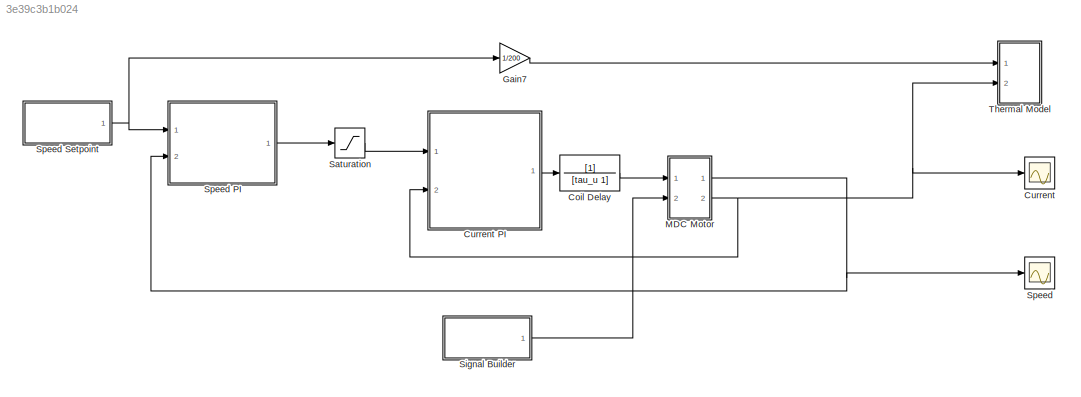
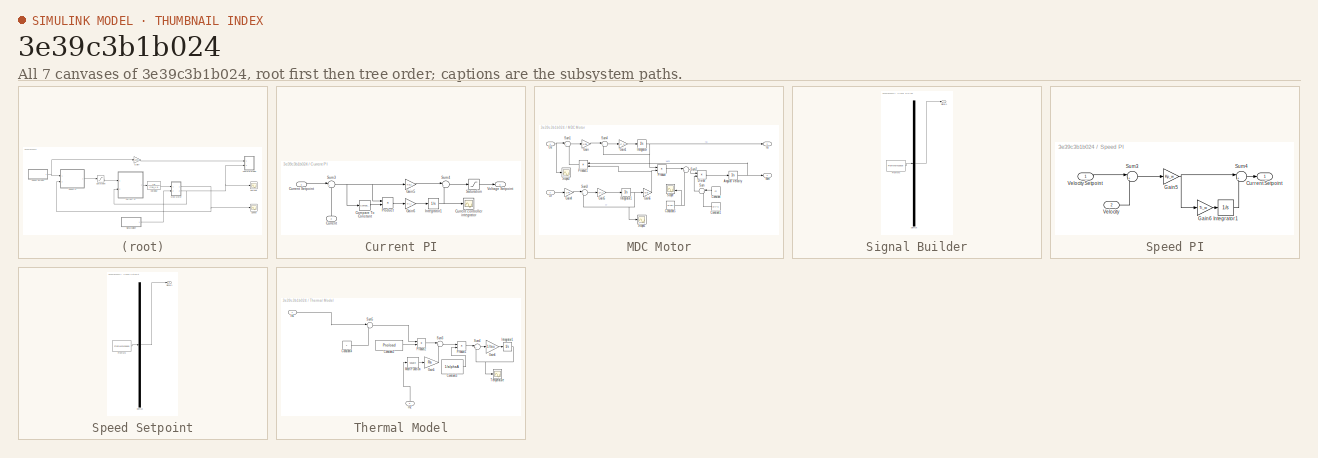
[diagram: thumbnail index - all 7 canvases of the model, root first then tree order]
MODEL slx_3e39c3b1b024
KIND model
CONFIG AbsTol = auto
CONFIG EnableMultiTasking = off
CONFIG FixedStep = auto
CONFIG MaxStep = auto
CONFIG MinStep = auto
CONFIG RelTol = 1e-3
CONFIG SampleTimeConstraint = Unconstrained
CONFIG Solver = ode23s
CONFIG SolverName = ode23s
CONFIG StartTime = 0.0
CONFIG StopTime = 1000
BLOCK [TransferFcn] Coil Delay
  Denominator = [tau_u 1]
BLOCK [Scope] Current 
  NumInputPorts = 1
  Ports = [1]
  ScopeSpecificationString = Simulink.scopes.TimeScopeBlockCfg('CurrentConfiguration', extmgr.ConfigurationSet(extmgr.Configuration('Core','General UI',true),extmgr.Configuration('Core','Source UI',true),extmgr.Configuration('Sources','WiredSimulink',true,'DataLoggingVariableName','ScopeData2'),extmgr.Configuration('Visuals','Time Domain',true,'SerializedDisplays',{struct('MinYLimReal','74.34345','MaxYLimReal','104.38469','YL...<+1454ch>
BLOCK [SubSystem] Current PI
  Ports = [2, 1]
  RequestExecContextInheritance = off
  Variant = off
BLOCK [Reference] Current PI/Compare To Constant  REF=simulink/Logic and Bit
Operations/Compare
To Constant
  Ports = [1, 1]
  SourceBlock = simulink/Logic and Bit\nOperations/Compare\nTo Constant
  SourceType = Compare To Constant
BLOCK [Inport] Current PI/Current
  IconDisplay = Port number
  Port = 2
BLOCK [Inport] Current PI/Current Setpoint
  IconDisplay = Port number
BLOCK [Scope] Current PI/Current controller integrator
  NumInputPorts = 1
  Ports = [1]
  ScopeSpecificationString = Simulink.scopes.TimeScopeBlockCfg('CurrentConfiguration', extmgr.ConfigurationSet(extmgr.Configuration('Core','General UI',true),extmgr.Configuration('Core','Source UI',true),extmgr.Configuration('Sources','WiredSimulink',true,'DataLoggingVariableName','ScopeData2'),extmgr.Configuration('Visuals','Time Domain',true,'SerializedDisplays',{struct('MinYLimReal','-23.98405','MaxYLimReal','215.85642','Y...<+1430ch>
BLOCK [Gain] Current PI/Gain5
  Gain = Kp_i
  OutDataTypeStr = Inherit: Inherit via internal rule
  ParamDataTypeStr = Inherit: Inherit via internal rule
  SaturateOnIntegerOverflow = off
BLOCK [Gain] Current PI/Gain6
  Gain = Ti_i
  OutDataTypeStr = Inherit: Inherit via internal rule
  ParamDataTypeStr = Inherit: Inherit via internal rule
  SaturateOnIntegerOverflow = off
BLOCK [Integrator] Current PI/Integrator1
  Ports = [1, 1]
BLOCK [Product] Current PI/Product
  InputSameDT = off
  OutDataTypeStr = Inherit: Inherit via internal rule
  Ports = [2, 1]
  RndMeth = Floor
  SaturateOnIntegerOverflow = off
BLOCK [Saturate] Current PI/Saturation
  InputPortMap = u0
  LowerLimit = -220
  Ports = [1, 1]
  UpperLimit = 220
BLOCK [Sum] Current PI/Sum3
  IconShape = round
  InputSameDT = off
  Inputs = |+-
  OutDataTypeStr = Inherit: Inherit via internal rule
  Ports = [2, 1]
  SaturateOnIntegerOverflow = off
BLOCK [Sum] Current PI/Sum4
  IconShape = round
  InputSameDT = off
  Inputs = |++
  OutDataTypeStr = Inherit: Inherit via internal rule
  Ports = [2, 1]
  SaturateOnIntegerOverflow = off
BLOCK [Outport] Current PI/Voltage Setpoint
  IconDisplay = Port number
BLOCK [Gain] Gain7
  Gain = 1/200
  OutDataTypeStr = Inherit: Inherit via internal rule
  ParamDataTypeStr = Inherit: Inherit via internal rule
  SaturateOnIntegerOverflow = off
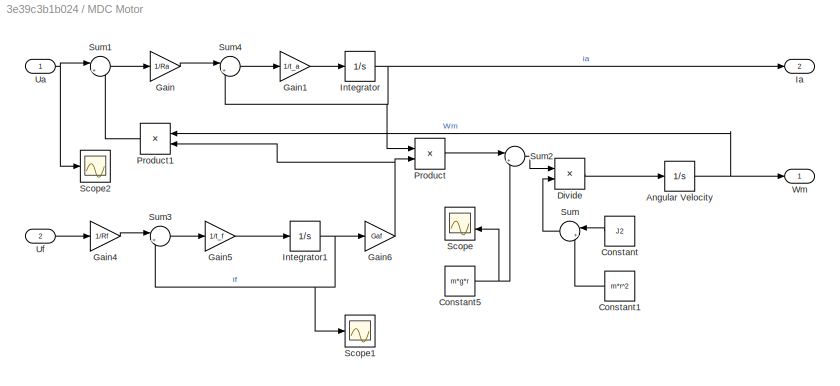
BLOCK [SubSystem] MDC Motor
  Ports = [2, 2]
  RequestExecContextInheritance = off
  Variant = off
BLOCK [Integrator] MDC Motor/Angular Velocity
  Ports = [1, 1]
BLOCK [Constant] MDC Motor/Constant
  Value = J2
BLOCK [Constant] MDC Motor/Constant1
  Value = m*r^2
BLOCK [Constant] MDC Motor/Constant5
  Value = m*g*r
BLOCK [Product] MDC Motor/Divide
  InputSameDT = off
  Inputs = */
  OutDataTypeStr = Inherit: Inherit via internal rule
  Ports = [2, 1]
  RndMeth = Floor
  SaturateOnIntegerOverflow = off
BLOCK [Gain] MDC Motor/Gain
  Gain = 1/Ra
  OutDataTypeStr = Inherit: Inherit via internal rule
  ParamDataTypeStr = Inherit: Inherit via internal rule
  SaturateOnIntegerOverflow = off
BLOCK [Gain] MDC Motor/Gain1
  Gain = 1/t_a
  OutDataTypeStr = Inherit: Inherit via internal rule
  ParamDataTypeStr = Inherit: Inherit via internal rule
  SaturateOnIntegerOverflow = off
BLOCK [Gain] MDC Motor/Gain4
  Gain = 1/Rf
  OutDataTypeStr = Inherit: Inherit via internal rule
  ParamDataTypeStr = Inherit: Inherit via internal rule
  SaturateOnIntegerOverflow = off
BLOCK [Gain] MDC Motor/Gain5
  Gain = 1/t_f
  OutDataTypeStr = Inherit: Inherit via internal rule
  ParamDataTypeStr = Inherit: Inherit via internal rule
  SaturateOnIntegerOverflow = off
BLOCK [Gain] MDC Motor/Gain6
  Gain = Gaf
  OutDataTypeStr = Inherit: Inherit via internal rule
  ParamDataTypeStr = Inherit: Inherit via internal rule
  SaturateOnIntegerOverflow = off
BLOCK [Outport] MDC Motor/Ia
  IconDisplay = Port number
  Port = 2
BLOCK [Integrator] MDC Motor/Integrator
  Ports = [1, 1]
BLOCK [Integrator] MDC Motor/Integrator1
  InitialCondition = i_f_0
  Ports = [1, 1]
BLOCK [Product] MDC Motor/Product
  InputSameDT = off
  OutDataTypeStr = Inherit: Inherit via internal rule
  Ports = [2, 1]
  RndMeth = Floor
  SaturateOnIntegerOverflow = off
BLOCK [Product] MDC Motor/Product1
  InputSameDT = off
  OutDataTypeStr = Inherit: Inherit via internal rule
  Ports = [2, 1]
  RndMeth = Floor
  SaturateOnIntegerOverflow = off
BLOCK [Scope] MDC Motor/Scope
  NumInputPorts = 2
  Ports = [2]
  ScopeSpecificationString = Simulink.scopes.TimeScopeBlockCfg('CurrentConfiguration', extmgr.ConfigurationSet(extmgr.Configuration('Core','General UI',true),extmgr.Configuration('Core','Source UI',true),extmgr.Configuration('Sources','WiredSimulink',true,'DataLoggingVariableName','ScopeData1'),extmgr.Configuration('Visuals','Time Domain',true,'SerializedDisplays',{struct('MinYLimReal','-17.49874','MaxYLimReal','157.4887','YL...<+1381ch>
BLOCK [Scope] MDC Motor/Scope1
  NumInputPorts = 1
  Ports = [1]
  ScopeSpecificationString = Simulink.scopes.TimeScopeBlockCfg('CurrentConfiguration', extmgr.ConfigurationSet(extmgr.Configuration('Core','General UI',true),extmgr.Configuration('Core','Source UI',true),extmgr.Configuration('Sources','WiredSimulink',true,'DataLoggingVariableName','ScopeData3'),extmgr.Configuration('Visuals','Time Domain',true,'SerializedDisplays',{struct('MinYLimReal','0.99415','MaxYLimReal','1.10305','YLabe...<+1703ch>
BLOCK [Scope] MDC Motor/Scope2
  NumInputPorts = 1
  Ports = [1]
  ScopeSpecificationString = Simulink.scopes.TimeScopeBlockCfg('CurrentConfiguration', extmgr.ConfigurationSet(extmgr.Configuration('Core','General UI',true),extmgr.Configuration('Core','Source UI',true),extmgr.Configuration('Sources','WiredSimulink',true,'DataLoggingVariableName','ScopeData4'),extmgr.Configuration('Visuals','Time Domain',true,'SerializedDisplays',{struct('MinYLimReal','-249.72638','MaxYLimReal','47.53659','Y...<+1373ch>
BLOCK [Sum] MDC Motor/Sum
  IconShape = round
  InputSameDT = off
  Inputs = |++
  OutDataTypeStr = Inherit: Inherit via internal rule
  Ports = [2, 1]
  SaturateOnIntegerOverflow = off
BLOCK [Sum] MDC Motor/Sum1
  IconShape = round
  InputSameDT = off
  Inputs = |+-
  OutDataTypeStr = Inherit: Inherit via internal rule
  Ports = [2, 1]
  SaturateOnIntegerOverflow = off
BLOCK [Sum] MDC Motor/Sum2
  IconShape = round
  InputSameDT = off
  Inputs = |+-
  OutDataTypeStr = Inherit: Inherit via internal rule
  Ports = [2, 1]
  SaturateOnIntegerOverflow = off
BLOCK [Sum] MDC Motor/Sum3
  IconShape = round
  InputSameDT = off
  Inputs = |+-
  OutDataTypeStr = Inherit: Inherit via internal rule
  Ports = [2, 1]
  SaturateOnIntegerOverflow = off
BLOCK [Sum] MDC Motor/Sum4
  IconShape = round
  InputSameDT = off
  Inputs = |+-
  OutDataTypeStr = Inherit: Inherit via internal rule
  Ports = [2, 1]
  SaturateOnIntegerOverflow = off
BLOCK [Inport] MDC Motor/Ua
  IconDisplay = Port number
BLOCK [Inport] MDC Motor/Uf
  IconDisplay = Port number
  Port = 2
BLOCK [Outport] MDC Motor/Wm
  IconDisplay = Port number
BLOCK [Saturate] Saturation
  InputPortMap = u0
  LowerLimit = -100
  Ports = [1, 1]
  UpperLimit = 100
BLOCK [SubSystem] Signal Builder
  ClipboardFcn = sigbuilder_block('clipboard');
  CloseFcn = sigbuilder_block('close');
  ContinueFcn = sigbuilder_block('continue');
  CopyFcn = sigbuilder_block('copy');
  DeleteFcn = sigbuilder_block('delete');
  LoadFcn = sigbuilder_block('load');
  MaskHideContents = on
  ModelCloseFcn = sigbuilder_block('modelClose');
  NameChangeFcn = sigbuilder_block('namechange');
  OpenFcn = sigbuilder_block('open',[437.6 199.2 550.4 400 ]);
  PauseFcn = sigbuilder_block('pause');
  Ports = [0, 1]
  PreSaveFcn = sigbuilder_block('preSave');
  RequestExecContextInheritance = off
  StartFcn = sigbuilder_block('start');
  StopFcn = sigbuilder_block('stop');
  Tag = STV Subsys
  Variant = off
BLOCK [Demux] Signal Builder/Demux
  Outputs = 1
  Ports = [1, 1]
  Tag = STV Demux
BLOCK [FromWorkspace] Signal Builder/FromWs
  SampleTime = 0
  Tag = STV FromWs
  VariableName = tuvar
  ZeroCross = on
BLOCK [Outport] Signal Builder/Signal 1
  IconDisplay = Port number
  Tag = STV Outport
BLOCK [Scope] Speed
  NumInputPorts = 1
  Ports = [1]
  ScopeSpecificationString = Simulink.scopes.TimeScopeBlockCfg('CurrentConfiguration', extmgr.ConfigurationSet(extmgr.Configuration('Core','General UI',true),extmgr.Configuration('Core','Source UI',true),extmgr.Configuration('Sources','WiredSimulink',true,'DataLoggingVariableName','ScopeData1'),extmgr.Configuration('Visuals','Time Domain',true,'SerializedDisplays',{struct('MinYLimReal','-7.88329','MaxYLimReal','2.99022','YLab...<+1418ch>
BLOCK [SubSystem] Speed PI
  Ports = [2, 1]
  RequestExecContextInheritance = off
  Variant = off
BLOCK [Outport] Speed PI/Current Setpoint
  IconDisplay = Port number
BLOCK [Gain] Speed PI/Gain5
  Gain = Kp_w
  OutDataTypeStr = Inherit: Inherit via internal rule
  ParamDataTypeStr = Inherit: Inherit via internal rule
  SaturateOnIntegerOverflow = off
BLOCK [Gain] Speed PI/Gain6
  Gain = Ti_w
  OutDataTypeStr = Inherit: Inherit via internal rule
  ParamDataTypeStr = Inherit: Inherit via internal rule
  SaturateOnIntegerOverflow = off
BLOCK [Integrator] Speed PI/Integrator1
  Ports = [1, 1]
BLOCK [Sum] Speed PI/Sum3
  IconShape = round
  InputSameDT = off
  Inputs = |+-
  OutDataTypeStr = Inherit: Inherit via internal rule
  Ports = [2, 1]
  SaturateOnIntegerOverflow = off
BLOCK [Sum] Speed PI/Sum4
  IconShape = round
  InputSameDT = off
  Inputs = |++
  OutDataTypeStr = Inherit: Inherit via internal rule
  Ports = [2, 1]
  SaturateOnIntegerOverflow = off
BLOCK [Inport] Speed PI/Velocity
  IconDisplay = Port number
  Port = 2
BLOCK [Inport] Speed PI/Velocity Setpoint
  IconDisplay = Port number
BLOCK [SubSystem] Speed Setpoint
  ClipboardFcn = sigbuilder_block('clipboard');
  CloseFcn = sigbuilder_block('close');
  ContinueFcn = sigbuilder_block('continue');
  CopyFcn = sigbuilder_block('copy');
  DeleteFcn = sigbuilder_block('delete');
  LoadFcn = sigbuilder_block('load');
  MaskHideContents = on
  ModelCloseFcn = sigbuilder_block('modelClose');
  NameChangeFcn = sigbuilder_block('namechange');
  OpenFcn = sigbuilder_block('open',[6 30 1428 681.75 ]);
  PauseFcn = sigbuilder_block('pause');
  Ports = [0, 1]
  PreSaveFcn = sigbuilder_block('preSave');
  RequestExecContextInheritance = off
  StartFcn = sigbuilder_block('start');
  StopFcn = sigbuilder_block('stop');
  Tag = STV Subsys
  Variant = off
BLOCK [Demux] Speed Setpoint/Demux
  Outputs = 1
  Ports = [1, 1]
  Tag = STV Demux
BLOCK [FromWorkspace] Speed Setpoint/FromWs
  SampleTime = 0
  Tag = STV FromWs
  VariableName = tuvar
  ZeroCross = on
BLOCK [Outport] Speed Setpoint/Signal 1
  IconDisplay = Port number
  Tag = STV Outport
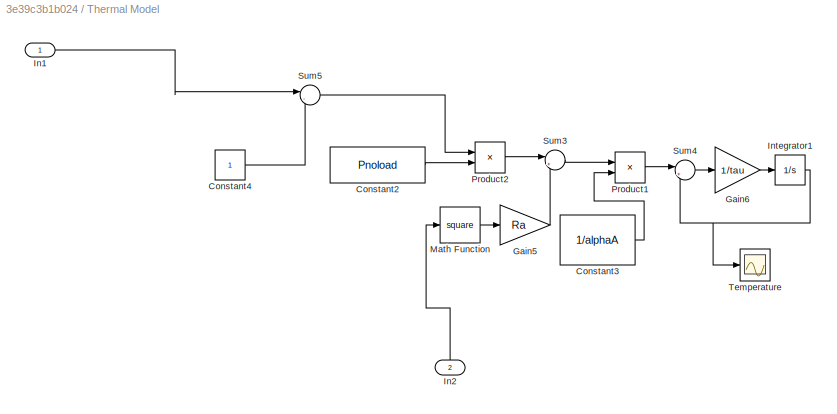
BLOCK [SubSystem] Thermal Model
  Ports = [2]
  RequestExecContextInheritance = off
  Variant = off
BLOCK [Constant] Thermal Model/Constant2
  Value = Pnoload
BLOCK [Constant] Thermal Model/Constant3
  Value = 1/alphaA
BLOCK [Constant] Thermal Model/Constant4
BLOCK [Gain] Thermal Model/Gain5
  Gain = Ra
  OutDataTypeStr = Inherit: Inherit via internal rule
  ParamDataTypeStr = Inherit: Inherit via internal rule
  SaturateOnIntegerOverflow = off
BLOCK [Gain] Thermal Model/Gain6
  Gain = 1/tau
  OutDataTypeStr = Inherit: Inherit via internal rule
  ParamDataTypeStr = Inherit: Inherit via internal rule
  SaturateOnIntegerOverflow = off
BLOCK [Inport] Thermal Model/In1
  IconDisplay = Port number
BLOCK [Inport] Thermal Model/In2
  IconDisplay = Port number
  Port = 2
BLOCK [Integrator] Thermal Model/Integrator1
  Ports = [1, 1]
BLOCK [Math] Thermal Model/Math Function
  Operator = square
  Ports = [1, 1]
BLOCK [Product] Thermal Model/Product1
  InputSameDT = off
  OutDataTypeStr = Inherit: Inherit via internal rule
  Ports = [2, 1]
  RndMeth = Floor
  SaturateOnIntegerOverflow = off
BLOCK [Product] Thermal Model/Product2
  InputSameDT = off
  OutDataTypeStr = Inherit: Inherit via internal rule
  Ports = [2, 1]
  RndMeth = Floor
  SaturateOnIntegerOverflow = off
BLOCK [Sum] Thermal Model/Sum3
  IconShape = round
  InputSameDT = off
  Inputs = |++
  OutDataTypeStr = Inherit: Inherit via internal rule
  Ports = [2, 1]
  SaturateOnIntegerOverflow = off
BLOCK [Sum] Thermal Model/Sum4
  IconShape = round
  InputSameDT = off
  Inputs = |+-
  OutDataTypeStr = Inherit: Inherit via internal rule
  Ports = [2, 1]
  SaturateOnIntegerOverflow = off
BLOCK [Sum] Thermal Model/Sum5
  IconShape = round
  InputSameDT = off
  Inputs = |-+
  OutDataTypeStr = Inherit: Inherit via internal rule
  Ports = [2, 1]
  SaturateOnIntegerOverflow = off
BLOCK [Scope] Thermal Model/Temperature
  NumInputPorts = 1
  Ports = [1]
  ScopeSpecificationString = Simulink.scopes.TimeScopeBlockCfg('CurrentConfiguration', extmgr.ConfigurationSet(extmgr.Configuration('Core','General UI',true),extmgr.Configuration('Core','Source UI',true),extmgr.Configuration('Sources','WiredSimulink',true,'DataLoggingVariableName','ScopeData1'),extmgr.Configuration('Visuals','Time Domain',true,'SerializedDisplays',{struct('MinYLimReal','-1.87933','MaxYLimReal','16.91396','YLa...<+1679ch>
LINE Coil Delay:1 -> MDC Motor:1
LINE Current PI/Compare To Constant:1 -> Current PI/Product:2
LINE Current PI/Current Setpoint:1 -> Current PI/Sum3:1
LINE Current PI/Current:1 -> Current PI/Sum3:2
LINE Current PI/Gain5:1 -> Current PI/Sum4:1
LINE Current PI/Gain6:1 -> Current PI/Integrator1:1
NET Current PI/Integrator1:1 -> Current PI/Current controller integrator:1, Current PI/Sum4:2
LINE Current PI/Product:1 -> Current PI/Gain6:1
LINE Current PI/Saturation:1 -> Current PI/Voltage Setpoint:1
NET Current PI/Sum3:1 -> Current PI/Compare To Constant:1, Current PI/Gain5:1, Current PI/Product:1
LINE Current PI/Sum4:1 -> Current PI/Saturation:1
LINE Current PI:1 -> Coil Delay:1
LINE Gain7:1 -> Thermal Model:1
NET MDC Motor/Angular Velocity:1 -> MDC Motor/Product1:1, MDC Motor/Wm:1
LINE MDC Motor/Constant1:1 -> MDC Motor/Sum:2
NET MDC Motor/Constant5:1 -> MDC Motor/Scope:2, MDC Motor/Sum2:2
LINE MDC Motor/Constant:1 -> MDC Motor/Sum:1
LINE MDC Motor/Divide:1 -> MDC Motor/Angular Velocity:1
LINE MDC Motor/Gain1:1 -> MDC Motor/Integrator:1
LINE MDC Motor/Gain4:1 -> MDC Motor/Sum3:1
LINE MDC Motor/Gain5:1 -> MDC Motor/Integrator1:1
NET MDC Motor/Gain6:1 -> MDC Motor/Product1:2, MDC Motor/Product:2
LINE MDC Motor/Gain:1 -> MDC Motor/Sum4:1
NET MDC Motor/Integrator1:1 -> MDC Motor/Gain6:1, MDC Motor/Scope1:1, MDC Motor/Sum3:2
NET MDC Motor/Integrator:1 -> MDC Motor/Ia:1, MDC Motor/Product:1, MDC Motor/Sum4:2
LINE MDC Motor/Product1:1 -> MDC Motor/Sum1:2
LINE MDC Motor/Product:1 -> MDC Motor/Sum2:1
LINE MDC Motor/Sum1:1 -> MDC Motor/Gain:1
LINE MDC Motor/Sum2:1 -> MDC Motor/Divide:1
LINE MDC Motor/Sum3:1 -> MDC Motor/Gain5:1
LINE MDC Motor/Sum4:1 -> MDC Motor/Gain1:1
LINE MDC Motor/Sum:1 -> MDC Motor/Divide:2
NET MDC Motor/Ua:1 -> MDC Motor/Scope2:1, MDC Motor/Sum1:1
LINE MDC Motor/Uf:1 -> MDC Motor/Gain4:1
NET MDC Motor:1 -> Speed PI:2, Speed:1
NET MDC Motor:2 -> Current :1, Current PI:2, Thermal Model:2
LINE Saturation:1 -> Current PI:1
LINE Signal Builder:1 -> MDC Motor:2
NET Speed PI/Gain5:1 -> Speed PI/Gain6:1, Speed PI/Sum4:1
LINE Speed PI/Gain6:1 -> Speed PI/Integrator1:1
LINE Speed PI/Integrator1:1 -> Speed PI/Sum4:2
LINE Speed PI/Sum3:1 -> Speed PI/Gain5:1
LINE Speed PI/Sum4:1 -> Speed PI/Current Setpoint:1
LINE Speed PI/Velocity Setpoint:1 -> Speed PI/Sum3:1
LINE Speed PI/Velocity:1 -> Speed PI/Sum3:2
LINE Speed PI:1 -> Saturation:1
NET Speed Setpoint:1 -> Gain7:1, Speed PI:1
LINE Thermal Model/Constant2:1 -> Thermal Model/Product2:2
LINE Thermal Model/Constant3:1 -> Thermal Model/Product1:2
LINE Thermal Model/Constant4:1 -> Thermal Model/Sum5:2
LINE Thermal Model/Gain5:1 -> Thermal Model/Sum3:2
LINE Thermal Model/Gain6:1 -> Thermal Model/Integrator1:1
LINE Thermal Model/In1:1 -> Thermal Model/Sum5:1
LINE Thermal Model/In2:1 -> Thermal Model/Math Function:1
NET Thermal Model/Integrator1:1 -> Thermal Model/Sum4:2, Thermal Model/Temperature:1
LINE Thermal Model/Math Function:1 -> Thermal Model/Gain5:1
LINE Thermal Model/Product1:1 -> Thermal Model/Sum4:1
LINE Thermal Model/Product2:1 -> Thermal Model/Sum3:1
LINE Thermal Model/Sum3:1 -> Thermal Model/Product1:1
LINE Thermal Model/Sum4:1 -> Thermal Model/Gain6:1
LINE Thermal Model/Sum5:1 -> Thermal Model/Product2:1
note: NET lines group one-source signal fan-out (src -> all destinations, sorted); 1:1 wires keep LINE
